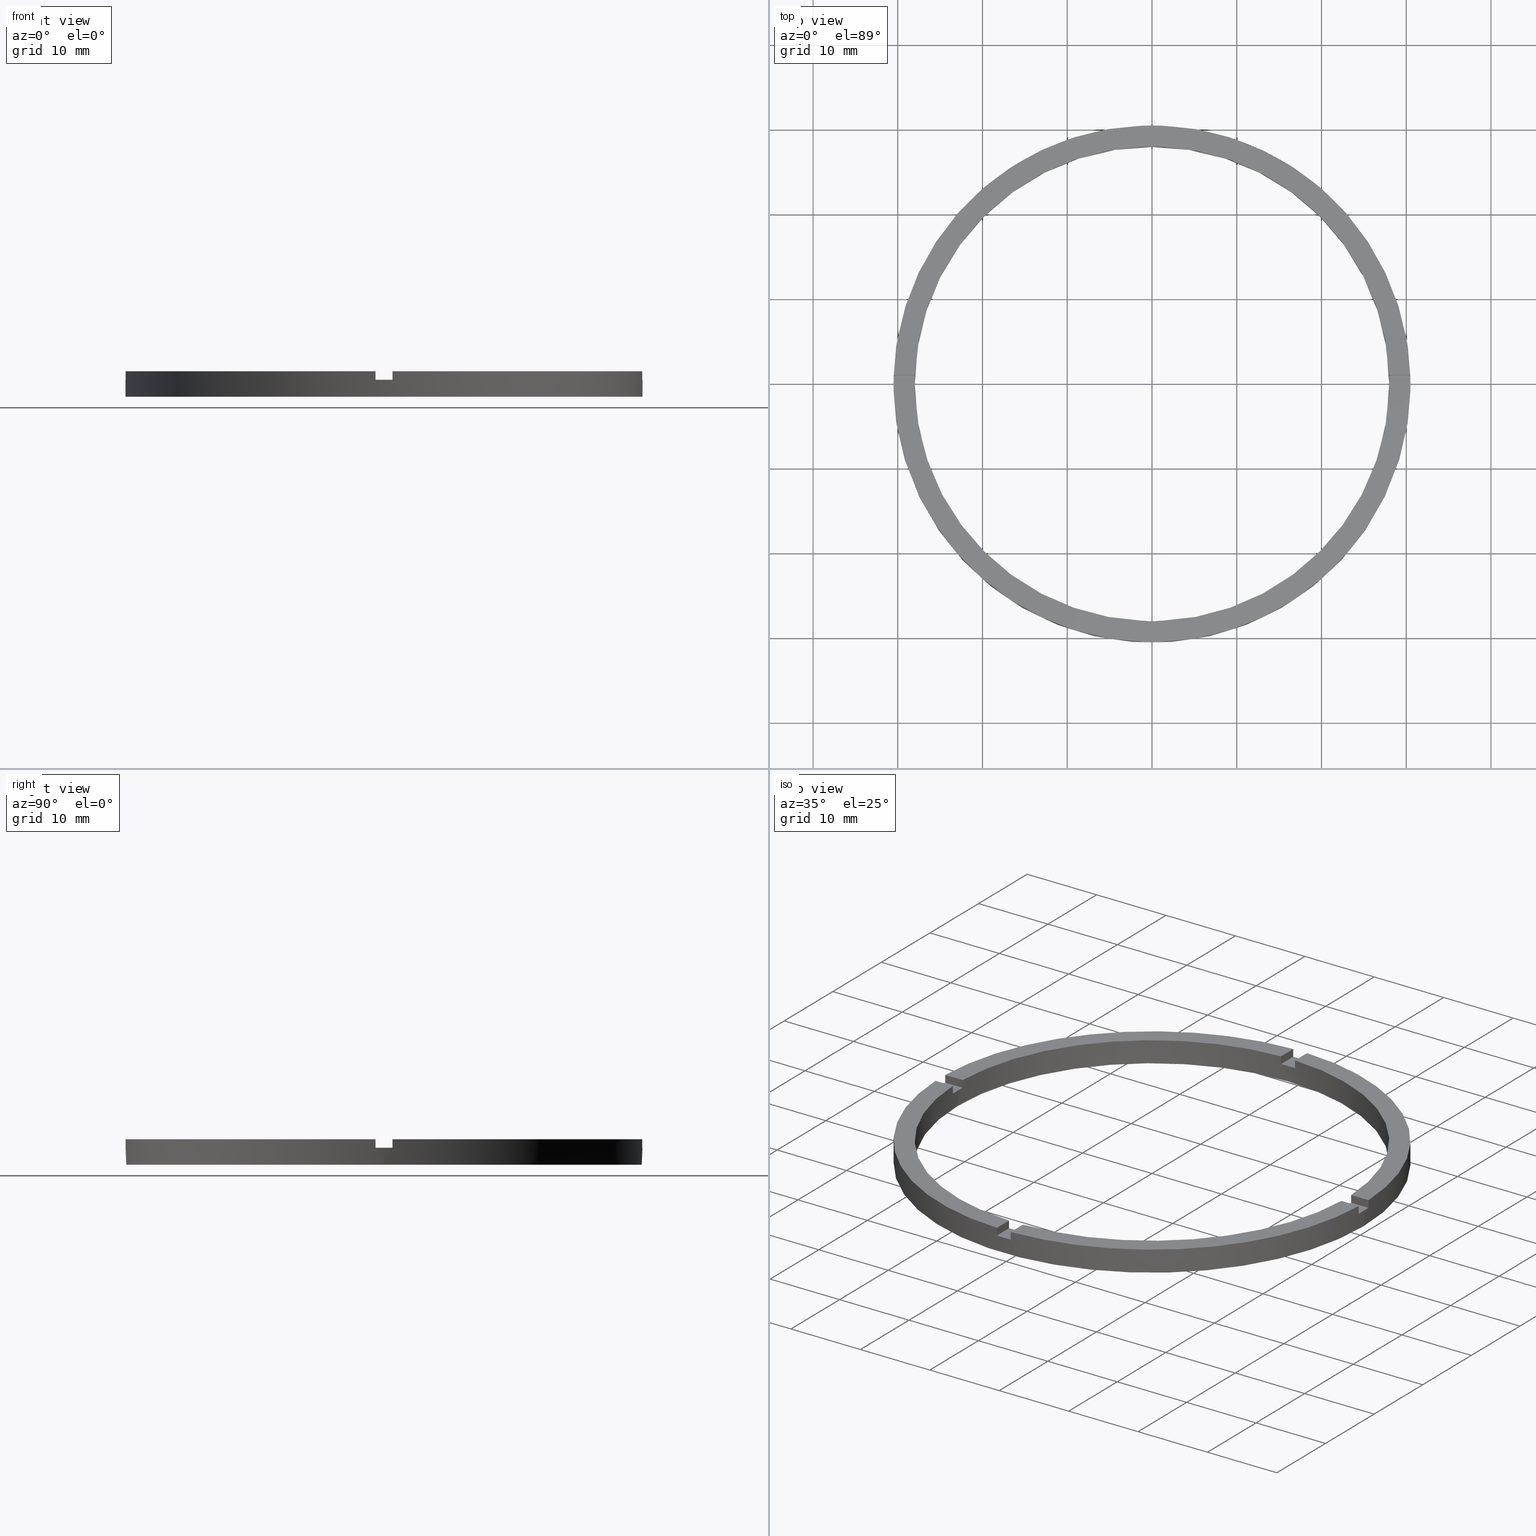
[diagram: canonical four-view strip — front | top / right | iso, engineering-drawing reading convention]
A machine part, canonical four-view strip (front | top / right | iso — engineering-drawing reading convention). The complete STEP part file that produces these views, byte-faithful:
ISO-10303-21;
HEADER;
FILE_DESCRIPTION (( 'STEP AP203' ),
    '1' );
FILE_NAME ('514126.step',
    '2024-12-26T02:39:59',
    ( 'MSI' ),
    ( '' ),
    'SwSTEP 2.0',
    'SolidWorks 2020',
    '' );
FILE_SCHEMA (( 'CONFIG_CONTROL_DESIGN' ));
ENDSEC;

DATA;
#1 = ORIENTED_EDGE ( 'NONE', *, *, #668, .T. ) ;
#2 = LOCAL_TIME ( 10, 39, 59.00000000000000000, #549 ) ;
#3 = EDGE_LOOP ( 'NONE', ( #233, #44, #696, #174 ) ) ;
#4 = COORDINATED_UNIVERSAL_TIME_OFFSET ( 8, 0, .AHEAD. ) ;
#5 = ORIENTED_EDGE ( 'NONE', *, *, #224, .F. ) ;
#6 = LOCAL_TIME ( 10, 39, 59.00000000000000000, #4 ) ;
#7 = ORIENTED_EDGE ( 'NONE', *, *, #504, .F. ) ;
#8 = DIRECTION ( 'NONE',  ( -0.000000000000000000, -0.000000000000000000, -1.000000000000000000 ) ) ;
#9 = PERSON_AND_ORGANIZATION_ROLE ( 'creator' ) ;
#10 = EDGE_CURVE ( 'NONE', #510, #271, #688, .T. ) ;
#11 = CARTESIAN_POINT ( 'NONE',  ( 30.48360214935235390, -1.000000000000158762, 2.000000000000000000 ) ) ;
#12 = LOCAL_TIME ( 10, 39, 59.00000000000000000, #31 ) ;
#13 = CARTESIAN_POINT ( 'NONE',  ( -27.98213715926644696, 0.9999999999999751310, 3.000000000000000000 ) ) ;
#14 = EDGE_CURVE ( 'NONE', #195, #271, #207, .T. ) ;
#15 = APPROVAL ( #777, 'δָ��' ) ;
#16 = AXIS2_PLACEMENT_3D ( 'NONE', #725, #392, #673 ) ;
#17 = DATE_AND_TIME ( #307, #2 ) ;
#18 = DIRECTION ( 'NONE',  ( 1.000000000000000000, 0.000000000000000000, 0.000000000000000000 ) ) ;
#19 = AXIS2_PLACEMENT_3D ( 'NONE', #220, #26, #463 ) ;
#20 = EDGE_CURVE ( 'NONE', #568, #703, #691, .T. ) ;
#21 = APPROVAL_DATE_TIME ( #295, #136 ) ;
#22 = DIRECTION ( 'NONE',  ( 0.000000000000000000, 0.000000000000000000, 1.000000000000000000 ) ) ;
#23 = VERTEX_POINT ( 'NONE', #669 ) ;
#24 = AXIS2_PLACEMENT_3D ( 'NONE', #557, #674, #721 ) ;
#25 = CALENDAR_DATE ( 2024, 26, 12 ) ;
#26 = DIRECTION ( 'NONE',  ( 0.000000000000000000, 0.000000000000000000, 1.000000000000000000 ) ) ;
#27 = ORIENTED_EDGE ( 'NONE', *, *, #436, .F. ) ;
#28 = EDGE_LOOP ( 'NONE', ( #348, #143, #132, #455 ) ) ;
#29 = ORIENTED_EDGE ( 'NONE', *, *, #308, .F. ) ;
#30 = PLANE ( 'NONE',  #695 ) ;
#31 = COORDINATED_UNIVERSAL_TIME_OFFSET ( 8, 0, .AHEAD. ) ;
#32 = DIRECTION ( 'NONE',  ( 1.000000000000000000, 0.000000000000000000, 0.000000000000000000 ) ) ;
#33 = ORIENTED_EDGE ( 'NONE', *, *, #488, .F. ) ;
#34 = CARTESIAN_POINT ( 'NONE',  ( -1.000000000000024425, 20.49999999999999645, 3.000000000000000000 ) ) ;
#35 = ORIENTED_EDGE ( 'NONE', *, *, #680, .F. ) ;
#36 = DIRECTION ( 'NONE',  ( 0.000000000000000000, -0.000000000000000000, 1.000000000000000000 ) ) ;
#37 = FACE_OUTER_BOUND ( 'NONE', #646, .T. ) ;
#38 = FACE_OUTER_BOUND ( 'NONE', #735, .T. ) ;
#39 = ORIENTED_EDGE ( 'NONE', *, *, #374, .T. ) ;
#40 = FACE_OUTER_BOUND ( 'NONE', #62, .T. ) ;
#41 = CARTESIAN_POINT ( 'NONE',  ( 0.9999999999999754641, 20.49999999999999645, 2.000000000000000000 ) ) ;
#42 = VERTEX_POINT ( 'NONE', #11 ) ;
#43 = VECTOR ( 'NONE', #645, 1000.000000000000000 ) ;
#44 = ORIENTED_EDGE ( 'NONE', *, *, #10, .T. ) ;
#45 = DIRECTION ( 'NONE',  ( 1.000000000000000000, 0.000000000000000000, 0.000000000000000000 ) ) ;
#46 = LINE ( 'NONE', #585, #345 ) ;
#47 = DIRECTION ( 'NONE',  ( 0.000000000000000000, 0.000000000000000000, 1.000000000000000000 ) ) ;
#48 = ADVANCED_FACE ( 'NONE', ( #451, #470 ), #30, .F. ) ;
#49 = LINE ( 'NONE', #530, #357 ) ;
#50 = ORIENTED_EDGE ( 'NONE', *, *, #701, .T. ) ;
#51 = CIRCLE ( 'NONE', #726, 30.50000000000000000 ) ;
#52 = VECTOR ( 'NONE', #626, 1000.000000000000000 ) ;
#53 = PLANE ( 'NONE',  #167 ) ;
#54 = DIRECTION ( 'NONE',  ( 1.000000000000000000, 0.000000000000000000, 0.000000000000000000 ) ) ;
#55 = CYLINDRICAL_SURFACE ( 'NONE', #246, 28.00000000000000000 ) ;
#56 = ORIENTED_EDGE ( 'NONE', *, *, #140, .F. ) ;
#57 = CARTESIAN_POINT ( 'NONE',  ( 0.000000000000000000, 0.000000000000000000, 0.000000000000000000 ) ) ;
#58 = CYLINDRICAL_SURFACE ( 'NONE', #687, 30.50000000000000000 ) ;
#59 = ORIENTED_EDGE ( 'NONE', *, *, #478, .F. ) ;
#60 = VECTOR ( 'NONE', #299, 1000.000000000000000 ) ;
#61 = VECTOR ( 'NONE', #639, 1000.000000000000000 ) ;
#62 = EDGE_LOOP ( 'NONE', ( #249, #209, #35, #27, #258, #780, #574, #515, #440, #527, #262, #712 ) ) ;
#63 = VECTOR ( 'NONE', #66, 1000.000000000000000 ) ;
#64 = LINE ( 'NONE', #756, #678 ) ;
#65 = ORIENTED_EDGE ( 'NONE', *, *, #657, .T. ) ;
#66 = DIRECTION ( 'NONE',  ( -0.000000000000000000, -1.000000000000000000, -0.000000000000000000 ) ) ;
#67 = EDGE_CURVE ( 'NONE', #271, #670, #443, .T. ) ;
#68 = CIRCLE ( 'NONE', #534, 28.00000000000000000 ) ;
#69 = VECTOR ( 'NONE', #672, 1000.000000000000000 ) ;
#70 = EDGE_LOOP ( 'NONE', ( #5, #311, #309, #578 ) ) ;
#71 = CIRCLE ( 'NONE', #632, 30.50000000000000000 ) ;
#72 = ORIENTED_EDGE ( 'NONE', *, *, #514, .T. ) ;
#73 = VECTOR ( 'NONE', #430, 1000.000000000000000 ) ;
#74 = ORIENTED_EDGE ( 'NONE', *, *, #755, .T. ) ;
#75 = CARTESIAN_POINT ( 'NONE',  ( -28.00000000000000000, 0.000000000000000000, 3.000000000000000000 ) ) ;
#76 = CIRCLE ( 'NONE', #766, 30.50000000000000000 ) ;
#77 = ORIENTED_EDGE ( 'NONE', *, *, #238, .T. ) ;
#78 = CARTESIAN_POINT ( 'NONE',  ( 0.000000000000000000, 0.000000000000000000, 3.000000000000000000 ) ) ;
#79 = EDGE_CURVE ( 'NONE', #731, #734, #454, .T. ) ;
#80 = LINE ( 'NONE', #636, #63 ) ;
#81 = ORIENTED_EDGE ( 'NONE', *, *, #504, .T. ) ;
#82 = FACE_OUTER_BOUND ( 'NONE', #222, .T. ) ;
#83 = LINE ( 'NONE', #675, #310 ) ;
#84 = AXIS2_PLACEMENT_3D ( 'NONE', #41, #152, #288 ) ;
#85 = EDGE_CURVE ( 'NONE', #690, #670, #169, .T. ) ;
#86 = CIRCLE ( 'NONE', #331, 28.00000000000000000 ) ;
#87 = DIRECTION ( 'NONE',  ( 1.000000000000000000, 0.000000000000000000, 0.000000000000000000 ) ) ;
#88 = VECTOR ( 'NONE', #378, 1000.000000000000000 ) ;
#89 = PERSON_AND_ORGANIZATION_ROLE ( 'classification_officer' ) ;
#90 = EDGE_CURVE ( 'NONE', #764, #349, #477, .T. ) ;
#91 = CARTESIAN_POINT ( 'NONE',  ( 0.000000000000000000, 0.000000000000000000, 2.000000000000000000 ) ) ;
#92 = DIRECTION ( 'NONE',  ( 0.000000000000000000, 0.000000000000000000, 1.000000000000000000 ) ) ;
#93 = AXIS2_PLACEMENT_3D ( 'NONE', #754, #47, #633 ) ;
#94 = CARTESIAN_POINT ( 'NONE',  ( 27.98213715926643985, -1.000000000000158984, 3.000000000000000000 ) ) ;
#95 = CARTESIAN_POINT ( 'NONE',  ( -27.98213715926644340, -1.000000000000024869, 3.000000000000000000 ) ) ;
#96 = CARTESIAN_POINT ( 'NONE',  ( -1.000000000000161871, -27.98213715926643985, 3.000000000000000000 ) ) ;
#97 = CALENDAR_DATE ( 2024, 26, 12 ) ;
#98 = APPROVAL_ROLE ( '' ) ;
#99 = CARTESIAN_POINT ( 'NONE',  ( 30.48360214935235390, -1.000000000000158762, 3.000000000000000000 ) ) ;
#100 = DIRECTION ( 'NONE',  ( 0.000000000000000000, 0.000000000000000000, 1.000000000000000000 ) ) ;
#101 = DIRECTION ( 'NONE',  ( -1.000000000000000000, -1.951563910473907735E-16, 0.000000000000000000 ) ) ;
#102 = PRODUCT_DEFINITION_SHAPE ( 'NONE', 'NONE',  #380 ) ;
#103 = CC_DESIGN_PERSON_AND_ORGANIZATION_ASSIGNMENT ( #547, #134, ( #757 ) ) ;
#104 = CARTESIAN_POINT ( 'NONE',  ( 0.000000000000000000, 0.000000000000000000, 2.000000000000000000 ) ) ;
#105 = CARTESIAN_POINT ( 'NONE',  ( 27.98213715926643985, -1.000000000000158984, 3.000000000000000000 ) ) ;
#106 = CARTESIAN_POINT ( 'NONE',  ( 30.48360214935236456, 0.9999999999998412381, 3.000000000000000000 ) ) ;
#107 = DIRECTION ( 'NONE',  ( 1.000000000000000000, 1.951563910473907735E-16, -0.000000000000000000 ) ) ;
#108 = ADVANCED_FACE ( 'NONE', ( #685 ), #610, .F. ) ;
#109 = CARTESIAN_POINT ( 'NONE',  ( 0.000000000000000000, 0.000000000000000000, 2.000000000000000000 ) ) ;
#110 =( NAMED_UNIT ( * ) PLANE_ANGLE_UNIT ( ) SI_UNIT ( $, .RADIAN. ) );
#111 = CARTESIAN_POINT ( 'NONE',  ( -27.98213715926644696, 0.9999999999999751310, 2.000000000000000000 ) ) ;
#112 = CARTESIAN_POINT ( 'NONE',  ( 0.000000000000000000, 0.000000000000000000, 2.000000000000000000 ) ) ;
#113 = PLANE ( 'NONE',  #446 ) ;
#114 = CARTESIAN_POINT ( 'NONE',  ( 0.000000000000000000, 0.000000000000000000, 2.000000000000000000 ) ) ;
#115 = DIRECTION ( 'NONE',  ( -0.000000000000000000, -0.000000000000000000, -1.000000000000000000 ) ) ;
#116 = EDGE_CURVE ( 'NONE', #734, #192, #181, .T. ) ;
#117 = CARTESIAN_POINT ( 'NONE',  ( -1.000000000000161871, -27.98213715926643985, 2.000000000000000000 ) ) ;
#118 = CARTESIAN_POINT ( 'NONE',  ( 0.000000000000000000, 0.000000000000000000, 3.000000000000000000 ) ) ;
#119 = DIRECTION ( 'NONE',  ( -1.000000000000000000, 0.000000000000000000, 0.000000000000000000 ) ) ;
#120 = ADVANCED_FACE ( 'NONE', ( #170 ), #581, .T. ) ;
#121 = CARTESIAN_POINT ( 'NONE',  ( 0.000000000000000000, 0.000000000000000000, 3.000000000000000000 ) ) ;
#122 = CARTESIAN_POINT ( 'NONE',  ( -30.48360214935236101, 0.9999999999999746869, 2.000000000000000000 ) ) ;
#123 = EDGE_CURVE ( 'NONE', #219, #423, #710, .T. ) ;
#124 = VECTOR ( 'NONE', #404, 1000.000000000000000 ) ;
#125 = FACE_OUTER_BOUND ( 'NONE', #480, .T. ) ;
#126 = SECURITY_CLASSIFICATION ( '', '', #260 ) ;
#127 = AXIS2_PLACEMENT_3D ( 'NONE', #179, #661, #548 ) ;
#128 = AXIS2_PLACEMENT_3D ( 'NONE', #689, #372, #642 ) ;
#129 = VECTOR ( 'NONE', #594, 1000.000000000000000 ) ;
#130 = VERTEX_POINT ( 'NONE', #412 ) ;
#131 = DIRECTION ( 'NONE',  ( -1.000000000000000000, -1.951563910473907735E-16, 0.000000000000000000 ) ) ;
#132 = ORIENTED_EDGE ( 'NONE', *, *, #20, .F. ) ;
#133 = DIRECTION ( 'NONE',  ( 1.000000000000000000, 0.000000000000000000, 0.000000000000000000 ) ) ;
#134 = PERSON_AND_ORGANIZATION_ROLE ( 'design_supplier' ) ;
#135 = VERTEX_POINT ( 'NONE', #461 ) ;
#136 = APPROVAL ( #506, 'δָ��' ) ;
#137 =( GEOMETRIC_REPRESENTATION_CONTEXT ( 3 ) GLOBAL_UNCERTAINTY_ASSIGNED_CONTEXT ( ( #650 ) ) GLOBAL_UNIT_ASSIGNED_CONTEXT ( ( #367, #110, #154 ) ) REPRESENTATION_CONTEXT ( 'NONE', 'WORKASPACE' ) );
#138 = ORIENTED_EDGE ( 'NONE', *, *, #308, .T. ) ;
#139 = CARTESIAN_POINT ( 'NONE',  ( 0.000000000000000000, 0.000000000000000000, 2.000000000000000000 ) ) ;
#140 = EDGE_CURVE ( 'NONE', #275, #711, #456, .T. ) ;
#141 = CARTESIAN_POINT ( 'NONE',  ( -20.50000000000018119, 0.9999999999999765743, 2.000000000000000000 ) ) ;
#142 = VERTEX_POINT ( 'NONE', #151 ) ;
#143 = ORIENTED_EDGE ( 'NONE', *, *, #159, .F. ) ;
#144 = DIRECTION ( 'NONE',  ( 6.505213034913025371E-17, -1.000000000000000000, 0.000000000000000000 ) ) ;
#145 = DIRECTION ( 'NONE',  ( 1.000000000000000000, 0.000000000000000000, 0.000000000000000000 ) ) ;
#146 = DIRECTION ( 'NONE',  ( -1.000000000000000000, -6.505213034913025371E-17, -0.000000000000000000 ) ) ;
#147 = EDGE_LOOP ( 'NONE', ( #593, #234 ) ) ;
#148 = DIRECTION ( 'NONE',  ( 0.000000000000000000, 0.000000000000000000, 1.000000000000000000 ) ) ;
#149 = ORIENTED_EDGE ( 'NONE', *, *, #623, .T. ) ;
#150 = CARTESIAN_POINT ( 'NONE',  ( 0.9999999999998382405, -27.98213715926645051, 2.000000000000000000 ) ) ;
#151 = CARTESIAN_POINT ( 'NONE',  ( 0.9999999999999754641, 30.48360214935236101, 3.000000000000000000 ) ) ;
#152 = DIRECTION ( 'NONE',  ( 1.000000000000000000, -0.000000000000000000, 0.000000000000000000 ) ) ;
#153 = EDGE_CURVE ( 'NONE', #130, #773, #702, .T. ) ;
#154 =( NAMED_UNIT ( * ) SI_UNIT ( $, .STERADIAN. ) SOLID_ANGLE_UNIT ( ) );
#155 = CARTESIAN_POINT ( 'NONE',  ( 0.000000000000000000, 0.000000000000000000, 2.000000000000000000 ) ) ;
#156 = CC_DESIGN_PERSON_AND_ORGANIZATION_ASSIGNMENT ( #292, #190, ( #757 ) ) ;
#157 = DIRECTION ( 'NONE',  ( 0.000000000000000000, -0.000000000000000000, 1.000000000000000000 ) ) ;
#158 = AXIS2_PLACEMENT_3D ( 'NONE', #141, #505, #101 ) ;
#159 = EDGE_CURVE ( 'NONE', #703, #349, #186, .T. ) ;
#160 = PLANE ( 'NONE',  #84 ) ;
#161 = DIRECTION ( 'NONE',  ( 1.301042606982605074E-16, -1.000000000000000000, 0.000000000000000000 ) ) ;
#162 = DIRECTION ( 'NONE',  ( 1.000000000000000000, 0.000000000000000000, -0.000000000000000000 ) ) ;
#163 = ADVANCED_FACE ( 'NONE', ( #473 ), #168, .T. ) ;
#164 = AXIS2_PLACEMENT_3D ( 'NONE', #121, #438, #713 ) ;
#165 = CARTESIAN_POINT ( 'NONE',  ( 0.000000000000000000, 0.000000000000000000, 3.000000000000000000 ) ) ;
#166 = CC_DESIGN_DATE_AND_TIME_ASSIGNMENT ( #551, #439, ( #126 ) ) ;
#167 = AXIS2_PLACEMENT_3D ( 'NONE', #114, #36, #289 ) ;
#168 = PLANE ( 'NONE',  #322 ) ;
#169 = CIRCLE ( 'NONE', #250, 30.50000000000000000 ) ;
#170 = FACE_OUTER_BOUND ( 'NONE', #201, .T. ) ;
#171 = CARTESIAN_POINT ( 'NONE',  ( -1.000000000000161648, -30.48360214935235390, 3.000000000000000000 ) ) ;
#172 = DIRECTION ( 'NONE',  ( 0.000000000000000000, 0.000000000000000000, 1.000000000000000000 ) ) ;
#173 = ORIENTED_EDGE ( 'NONE', *, *, #606, .T. ) ;
#174 = ORIENTED_EDGE ( 'NONE', *, *, #755, .F. ) ;
#175 = ORIENTED_EDGE ( 'NONE', *, *, #523, .T. ) ;
#176 = ORIENTED_EDGE ( 'NONE', *, *, #657, .F. ) ;
#177 = ORIENTED_EDGE ( 'NONE', *, *, #347, .T. ) ;
#178 = ORIENTED_EDGE ( 'NONE', *, *, #686, .F. ) ;
#179 = CARTESIAN_POINT ( 'NONE',  ( 0.000000000000000000, 0.000000000000000000, 0.000000000000000000 ) ) ;
#180 = CARTESIAN_POINT ( 'NONE',  ( 0.000000000000000000, 0.000000000000000000, 2.000000000000000000 ) ) ;
#181 = CIRCLE ( 'NONE', #666, 30.50000000000000000 ) ;
#182 = ORIENTED_EDGE ( 'NONE', *, *, #354, .F. ) ;
#183 = ORIENTED_EDGE ( 'NONE', *, *, #448, .T. ) ;
#184 = VECTOR ( 'NONE', #684, 1000.000000000000000 ) ;
#185 = ORIENTED_EDGE ( 'NONE', *, *, #490, .T. ) ;
#186 = CIRCLE ( 'NONE', #538, 28.00000000000000000 ) ;
#187 = EDGE_LOOP ( 'NONE', ( #185, #771, #584, #182, #188, #692 ) ) ;
#188 = ORIENTED_EDGE ( 'NONE', *, *, #606, .F. ) ;
#189 = CARTESIAN_POINT ( 'NONE',  ( 0.000000000000000000, 0.000000000000000000, 2.000000000000000000 ) ) ;
#190 = PERSON_AND_ORGANIZATION_ROLE ( 'creator' ) ;
#191 = ORIENTED_EDGE ( 'NONE', *, *, #123, .F. ) ;
#192 = VERTEX_POINT ( 'NONE', #550 ) ;
#193 = VERTEX_POINT ( 'NONE', #122 ) ;
#194 = ORIENTED_EDGE ( 'NONE', *, *, #629, .F. ) ;
#195 = VERTEX_POINT ( 'NONE', #699 ) ;
#196 = DIRECTION ( 'NONE',  ( 1.000000000000000000, 0.000000000000000000, 0.000000000000000000 ) ) ;
#197 = VECTOR ( 'NONE', #107, 1000.000000000000000 ) ;
#198 = EDGE_CURVE ( 'NONE', #568, #408, #210, .T. ) ;
#199 = VERTEX_POINT ( 'NONE', #388 ) ;
#200 = DIRECTION ( 'NONE',  ( 0.000000000000000000, 1.000000000000000000, 0.000000000000000000 ) ) ;
#201 = EDGE_LOOP ( 'NONE', ( #445, #39, #339, #595, #255, #149 ) ) ;
#202 = AXIS2_PLACEMENT_3D ( 'NONE', #622, #92, #263 ) ;
#203 = VERTEX_POINT ( 'NONE', #435 ) ;
#204 = AXIS2_PLACEMENT_3D ( 'NONE', #91, #389, #328 ) ;
#205 = EDGE_CURVE ( 'NONE', #130, #142, #717, .T. ) ;
#206 = FACE_OUTER_BOUND ( 'NONE', #532, .T. ) ;
#207 = CIRCLE ( 'NONE', #577, 28.00000000000000000 ) ;
#208 = DIRECTION ( 'NONE',  ( 1.000000000000000000, 1.951563910473907735E-16, -0.000000000000000000 ) ) ;
#209 = ORIENTED_EDGE ( 'NONE', *, *, #396, .T. ) ;
#210 = CIRCLE ( 'NONE', #373, 30.50000000000000000 ) ;
#211 = EDGE_LOOP ( 'NONE', ( #77, #540, #191, #273 ) ) ;
#212 = LINE ( 'NONE', #370, #481 ) ;
#213 = VECTOR ( 'NONE', #257, 1000.000000000000000 ) ;
#214 = AXIS2_PLACEMENT_3D ( 'NONE', #634, #148, #32 ) ;
#215 = ORIENTED_EDGE ( 'NONE', *, *, #85, .T. ) ;
#216 = ORIENTED_EDGE ( 'NONE', *, *, #779, .T. ) ;
#217 = DIRECTION ( 'NONE',  ( -1.301042606982605074E-16, 1.000000000000000000, -0.000000000000000000 ) ) ;
#218 = LINE ( 'NONE', #245, #765 ) ;
#219 = VERTEX_POINT ( 'NONE', #566 ) ;
#220 = CARTESIAN_POINT ( 'NONE',  ( 0.000000000000000000, 0.000000000000000000, 3.000000000000000000 ) ) ;
#221 = AXIS2_PLACEMENT_3D ( 'NONE', #112, #157, #232 ) ;
#222 = EDGE_LOOP ( 'NONE', ( #326, #458, #56, #29 ) ) ;
#223 = CARTESIAN_POINT ( 'NONE',  ( 0.9999999999999754641, 27.98213715926644696, 3.000000000000000000 ) ) ;
#224 = EDGE_CURVE ( 'NONE', #764, #466, #486, .T. ) ;
#225 = CARTESIAN_POINT ( 'NONE',  ( 20.49999999999999289, 0.9999999999998406830, 3.000000000000000000 ) ) ;
#226 = CARTESIAN_POINT ( 'NONE',  ( -1.000000000000161648, -30.48360214935235390, 3.000000000000000000 ) ) ;
#227 = CARTESIAN_POINT ( 'NONE',  ( 0.000000000000000000, 0.000000000000000000, 3.000000000000000000 ) ) ;
#228 = ORIENTED_EDGE ( 'NONE', *, *, #85, .F. ) ;
#229 = CARTESIAN_POINT ( 'NONE',  ( -1.000000000000162759, -20.50000000000017764, 3.000000000000000000 ) ) ;
#230 = CARTESIAN_POINT ( 'NONE',  ( 0.9999999999998371303, -20.50000000000017764, 2.000000000000000000 ) ) ;
#231 = ORIENTED_EDGE ( 'NONE', *, *, #14, .F. ) ;
#232 = DIRECTION ( 'NONE',  ( 1.000000000000000000, 0.000000000000000000, 0.000000000000000000 ) ) ;
#233 = ORIENTED_EDGE ( 'NONE', *, *, #623, .F. ) ;
#234 = ORIENTED_EDGE ( 'NONE', *, *, #400, .F. ) ;
#235 = CARTESIAN_POINT ( 'NONE',  ( -1.000000000000024425, 20.49999999999999645, 2.000000000000000000 ) ) ;
#236 = PLANE ( 'NONE',  #462 ) ;
#237 = PLANE ( 'NONE',  #612 ) ;
#238 = EDGE_CURVE ( 'NONE', #321, #654, #403, .T. ) ;
#239 = DIRECTION ( 'NONE',  ( -0.000000000000000000, -0.000000000000000000, -1.000000000000000000 ) ) ;
#240 = VECTOR ( 'NONE', #8, 1000.000000000000000 ) ;
#241 = VECTOR ( 'NONE', #356, 1000.000000000000000 ) ;
#242 = EDGE_CURVE ( 'NONE', #135, #130, #405, .T. ) ;
#243 = CARTESIAN_POINT ( 'NONE',  ( 27.98213715926645051, 0.9999999999998411271, 2.000000000000000000 ) ) ;
#244 = PRODUCT_RELATED_PRODUCT_CATEGORY ( 'detail', '', ( #341 ) ) ;
#245 = CARTESIAN_POINT ( 'NONE',  ( 28.00000000000000000, 3.429011037612589276E-15, 3.000000000000000000 ) ) ;
#246 = AXIS2_PLACEMENT_3D ( 'NONE', #118, #239, #698 ) ;
#247 = ORIENTED_EDGE ( 'NONE', *, *, #514, .F. ) ;
#248 = ORIENTED_EDGE ( 'NONE', *, *, #469, .T. ) ;
#249 = ORIENTED_EDGE ( 'NONE', *, *, #653, .T. ) ;
#250 = AXIS2_PLACEMENT_3D ( 'NONE', #599, #406, #379 ) ;
#251 = ADVANCED_BREP_SHAPE_REPRESENTATION ( '514126', ( #750, #16 ), #137 ) ;
#252 = CIRCLE ( 'NONE', #204, 28.00000000000000000 ) ;
#253 = ORIENTED_EDGE ( 'NONE', *, *, #242, .F. ) ;
#254 = CIRCLE ( 'NONE', #127, 30.50000000000000000 ) ;
#255 = ORIENTED_EDGE ( 'NONE', *, *, #653, .F. ) ;
#256 = EDGE_CURVE ( 'NONE', #416, #553, #409, .T. ) ;
#257 = DIRECTION ( 'NONE',  ( 0.000000000000000000, 0.000000000000000000, 1.000000000000000000 ) ) ;
#258 = ORIENTED_EDGE ( 'NONE', *, *, #354, .T. ) ;
#259 = CARTESIAN_POINT ( 'NONE',  ( 0.9999999999999754641, 20.49999999999999645, 2.000000000000000000 ) ) ;
#260 = SECURITY_CLASSIFICATION_LEVEL ( 'unclassified' ) ;
#261 = ORIENTED_EDGE ( 'NONE', *, *, #627, .F. ) ;
#262 = ORIENTED_EDGE ( 'NONE', *, *, #14, .T. ) ;
#263 = DIRECTION ( 'NONE',  ( 1.000000000000000000, 0.000000000000000000, 0.000000000000000000 ) ) ;
#264 = CARTESIAN_POINT ( 'NONE',  ( -30.48360214935236101, -1.000000000000025313, 3.000000000000000000 ) ) ;
#265 = EDGE_LOOP ( 'NONE', ( #343, #81 ) ) ;
#266 = ORIENTED_EDGE ( 'NONE', *, *, #779, .F. ) ;
#267 = CARTESIAN_POINT ( 'NONE',  ( 0.9999999999999754641, 30.48360214935236101, 3.000000000000000000 ) ) ;
#268 = AXIS2_PLACEMENT_3D ( 'NONE', #554, #371, #607 ) ;
#269 = ORIENTED_EDGE ( 'NONE', *, *, #369, .F. ) ;
#270 = AXIS2_PLACEMENT_3D ( 'NONE', #575, #366, #133 ) ;
#271 = VERTEX_POINT ( 'NONE', #105 ) ;
#272 = DIRECTION ( 'NONE',  ( 0.000000000000000000, 0.000000000000000000, 1.000000000000000000 ) ) ;
#273 = ORIENTED_EDGE ( 'NONE', *, *, #740, .F. ) ;
#274 = CARTESIAN_POINT ( 'NONE',  ( 0.9999999999998384625, -30.48360214935236456, 2.000000000000000000 ) ) ;
#275 = VERTEX_POINT ( 'NONE', #342 ) ;
#276 = CARTESIAN_POINT ( 'NONE',  ( 20.49999999999999289, 0.9999999999998406830, 2.000000000000000000 ) ) ;
#277 = APPROVAL_PERSON_ORGANIZATION ( #282, #15, #98 ) ;
#278 = CARTESIAN_POINT ( 'NONE',  ( 0.000000000000000000, 0.000000000000000000, 2.000000000000000000 ) ) ;
#279 = CALENDAR_DATE ( 2024, 26, 12 ) ;
#280 = CARTESIAN_POINT ( 'NONE',  ( 30.48360214935236456, 0.9999999999998412381, 3.000000000000000000 ) ) ;
#281 = CC_DESIGN_SECURITY_CLASSIFICATION ( #126, ( #757 ) ) ;
#282 = PERSON_AND_ORGANIZATION ( #391, #362 ) ;
#283 = CARTESIAN_POINT ( 'NONE',  ( 28.00000000000000000, 3.429011037612589276E-15, 0.000000000000000000 ) ) ;
#284 = CARTESIAN_POINT ( 'NONE',  ( 30.50000000000000000, 3.735172737399427541E-15, 3.000000000000000000 ) ) ;
#285 = CARTESIAN_POINT ( 'NONE',  ( 20.49999999999999289, -1.000000000000159428, 3.000000000000000000 ) ) ;
#286 = APPROVAL_PERSON_ORGANIZATION ( #290, #136, #546 ) ;
#287 = CALENDAR_DATE ( 2024, 26, 12 ) ;
#288 = DIRECTION ( 'NONE',  ( 0.000000000000000000, 0.000000000000000000, -1.000000000000000000 ) ) ;
#289 = DIRECTION ( 'NONE',  ( 1.000000000000000000, 0.000000000000000000, -0.000000000000000000 ) ) ;
#290 = PERSON_AND_ORGANIZATION ( #391, #362 ) ;
#291 = APPROVAL_DATE_TIME ( #558, #15 ) ;
#292 = PERSON_AND_ORGANIZATION ( #391, #362 ) ;
#293 = DIRECTION ( 'NONE',  ( 0.000000000000000000, 1.000000000000000000, 0.000000000000000000 ) ) ;
#294 = EDGE_CURVE ( 'NONE', #764, #427, #640, .T. ) ;
#295 = DATE_AND_TIME ( #25, #6 ) ;
#296 = VERTEX_POINT ( 'NONE', #509 ) ;
#297 = CARTESIAN_POINT ( 'NONE',  ( -30.50000000000000000, 0.000000000000000000, 0.000000000000000000 ) ) ;
#298 = COORDINATED_UNIVERSAL_TIME_OFFSET ( 8, 0, .AHEAD. ) ;
#299 = DIRECTION ( 'NONE',  ( -0.000000000000000000, -0.000000000000000000, -1.000000000000000000 ) ) ;
#300 = ADVANCED_FACE ( 'NONE', ( #125 ), #732, .T. ) ;
#301 = ORIENTED_EDGE ( 'NONE', *, *, #396, .F. ) ;
#302 = LOCAL_TIME ( 10, 39, 59.00000000000000000, #298 ) ;
#303 = SHAPE_DEFINITION_REPRESENTATION ( #102, #251 ) ;
#304 = PLANE ( 'NONE',  #499 ) ;
#305 = ORIENTED_EDGE ( 'NONE', *, *, #613, .T. ) ;
#306 = VERTEX_POINT ( 'NONE', #274 ) ;
#307 = CALENDAR_DATE ( 2024, 26, 12 ) ;
#308 = EDGE_CURVE ( 'NONE', #568, #275, #502, .T. ) ;
#309 = ORIENTED_EDGE ( 'NONE', *, *, #376, .T. ) ;
#310 = VECTOR ( 'NONE', #217, 1000.000000000000000 ) ;
#311 = ORIENTED_EDGE ( 'NONE', *, *, #90, .T. ) ;
#312 = DIRECTION ( 'NONE',  ( 1.000000000000000000, 0.000000000000000000, 0.000000000000000000 ) ) ;
#313 = CYLINDRICAL_SURFACE ( 'NONE', #164, 28.00000000000000000 ) ;
#314 = ORIENTED_EDGE ( 'NONE', *, *, #347, .F. ) ;
#315 = VECTOR ( 'NONE', #22, 1000.000000000000000 ) ;
#316 = EDGE_CURVE ( 'NONE', #690, #306, #745, .T. ) ;
#317 = VECTOR ( 'NONE', #414, 1000.000000000000000 ) ;
#318 = CARTESIAN_POINT ( 'NONE',  ( -1.000000000000024425, 30.48360214935236101, 3.000000000000000000 ) ) ;
#319 = CC_DESIGN_DATE_AND_TIME_ASSIGNMENT ( #17, #555, ( #380 ) ) ;
#320 = LINE ( 'NONE', #683, #60 ) ;
#321 = VERTEX_POINT ( 'NONE', #280 ) ;
#322 = AXIS2_PLACEMENT_3D ( 'NONE', #624, #385, #723 ) ;
#323 = LINE ( 'NONE', #106, #88 ) ;
#324 = ORIENTED_EDGE ( 'NONE', *, *, #393, .F. ) ;
#325 = LINE ( 'NONE', #476, #573 ) ;
#326 = ORIENTED_EDGE ( 'NONE', *, *, #20, .T. ) ;
#327 = CIRCLE ( 'NONE', #128, 28.00000000000000000 ) ;
#328 = DIRECTION ( 'NONE',  ( 1.000000000000000000, 0.000000000000000000, 0.000000000000000000 ) ) ;
#329 = DIRECTION ( 'NONE',  ( 0.000000000000000000, 0.000000000000000000, 1.000000000000000000 ) ) ;
#330 = ORIENTED_EDGE ( 'NONE', *, *, #400, .T. ) ;
#331 = AXIS2_PLACEMENT_3D ( 'NONE', #572, #172, #387 ) ;
#332 = FACE_OUTER_BOUND ( 'NONE', #484, .T. ) ;
#333 = VECTOR ( 'NONE', #655, 1000.000000000000000 ) ;
#334 = LINE ( 'NONE', #351, #69 ) ;
#335 = CIRCLE ( 'NONE', #453, 28.00000000000000000 ) ;
#336 = ORIENTED_EDGE ( 'NONE', *, *, #490, .F. ) ;
#337 = VECTOR ( 'NONE', #131, 1000.000000000000000 ) ;
#338 = DIRECTION ( 'NONE',  ( 1.000000000000000000, 0.000000000000000000, 0.000000000000000000 ) ) ;
#339 = ORIENTED_EDGE ( 'NONE', *, *, #123, .T. ) ;
#340 = CIRCLE ( 'NONE', #214, 30.50000000000000000 ) ;
#341 = PRODUCT ( '514126', '514126', '', ( #667 ) ) ;
#342 = CARTESIAN_POINT ( 'NONE',  ( -30.48360214935236101, -1.000000000000025313, 2.000000000000000000 ) ) ;
#343 = ORIENTED_EDGE ( 'NONE', *, *, #680, .T. ) ;
#344 = APPROVAL_ROLE ( '' ) ;
#345 = VECTOR ( 'NONE', #677, 1000.000000000000000 ) ;
#346 = ORIENTED_EDGE ( 'NONE', *, *, #648, .F. ) ;
#347 = EDGE_CURVE ( 'NONE', #472, #457, #747, .T. ) ;
#348 = ORIENTED_EDGE ( 'NONE', *, *, #376, .F. ) ;
#349 = VERTEX_POINT ( 'NONE', #96 ) ;
#350 = FACE_OUTER_BOUND ( 'NONE', #533, .T. ) ;
#351 = CARTESIAN_POINT ( 'NONE',  ( -20.50000000000018119, 0.9999999999999765743, 2.000000000000000000 ) ) ;
#352 = FACE_OUTER_BOUND ( 'NONE', #70, .T. ) ;
#353 = CIRCLE ( 'NONE', #268, 28.00000000000000000 ) ;
#354 = EDGE_CURVE ( 'NONE', #767, #711, #503, .T. ) ;
#355 = PERSON_AND_ORGANIZATION ( #391, #362 ) ;
#356 = DIRECTION ( 'NONE',  ( 0.000000000000000000, 0.000000000000000000, 1.000000000000000000 ) ) ;
#357 = VECTOR ( 'NONE', #768, 1000.000000000000000 ) ;
#358 = DIRECTION ( 'NONE',  ( 1.000000000000000000, 0.000000000000000000, 0.000000000000000000 ) ) ;
#359 = DIRECTION ( 'NONE',  ( 1.951563910473907735E-16, -1.000000000000000000, 0.000000000000000000 ) ) ;
#360 = DIRECTION ( 'NONE',  ( -0.000000000000000000, -0.000000000000000000, -1.000000000000000000 ) ) ;
#361 = APPROVAL_PERSON_ORGANIZATION ( #615, #422, #344 ) ;
#362 = ORGANIZATION ( 'δָ��', 'δָ��', '' ) ;
#363 = DIRECTION ( 'NONE',  ( 0.000000000000000000, 0.000000000000000000, 1.000000000000000000 ) ) ;
#364 = DATE_AND_TIME ( #97, #611 ) ;
#365 = APPROVAL_DATE_TIME ( #364, #422 ) ;
#366 = DIRECTION ( 'NONE',  ( 0.000000000000000000, 0.000000000000000000, 1.000000000000000000 ) ) ;
#367 =( LENGTH_UNIT ( ) NAMED_UNIT ( * ) SI_UNIT ( .MILLI., .METRE. ) );
#368 = ADVANCED_FACE ( 'NONE', ( #748 ), #628, .F. ) ;
#369 = EDGE_CURVE ( 'NONE', #472, #193, #334, .T. ) ;
#370 = CARTESIAN_POINT ( 'NONE',  ( 27.98213715926645051, 0.9999999999998411271, 3.000000000000000000 ) ) ;
#371 = DIRECTION ( 'NONE',  ( 0.000000000000000000, 0.000000000000000000, 1.000000000000000000 ) ) ;
#372 = DIRECTION ( 'NONE',  ( 0.000000000000000000, 0.000000000000000000, 1.000000000000000000 ) ) ;
#373 = AXIS2_PLACEMENT_3D ( 'NONE', #431, #714, #87 ) ;
#374 = EDGE_CURVE ( 'NONE', #694, #219, #580, .T. ) ;
#375 = ADVANCED_FACE ( 'NONE', ( #332 ), #737, .F. ) ;
#376 = EDGE_CURVE ( 'NONE', #349, #408, #583, .T. ) ;
#377 = AXIS2_PLACEMENT_3D ( 'NONE', #512, #359, #741 ) ;
#378 = DIRECTION ( 'NONE',  ( -0.000000000000000000, -0.000000000000000000, -1.000000000000000000 ) ) ;
#379 = DIRECTION ( 'NONE',  ( 1.000000000000000000, 0.000000000000000000, 0.000000000000000000 ) ) ;
#380 = PRODUCT_DEFINITION ( 'δ֪', '', #757, #601 ) ;
#381 = DIRECTION ( 'NONE',  ( 0.000000000000000000, 0.000000000000000000, 1.000000000000000000 ) ) ;
#382 = EDGE_CURVE ( 'NONE', #199, #142, #64, .T. ) ;
#383 = ADVANCED_FACE ( 'NONE', ( #206 ), #113, .T. ) ;
#384 = CARTESIAN_POINT ( 'NONE',  ( 0.9999999999998371303, -20.50000000000017764, 2.000000000000000000 ) ) ;
#385 = DIRECTION ( 'NONE',  ( 0.000000000000000000, 0.000000000000000000, 1.000000000000000000 ) ) ;
#386 = ADVANCED_FACE ( 'NONE', ( #693 ), #160, .F. ) ;
#387 = DIRECTION ( 'NONE',  ( 1.000000000000000000, 0.000000000000000000, 0.000000000000000000 ) ) ;
#388 = CARTESIAN_POINT ( 'NONE',  ( 0.9999999999999754641, 27.98213715926644696, 3.000000000000000000 ) ) ;
#389 = DIRECTION ( 'NONE',  ( 0.000000000000000000, -0.000000000000000000, 1.000000000000000000 ) ) ;
#390 = DIRECTION ( 'NONE',  ( -1.000000000000000000, 0.000000000000000000, 0.000000000000000000 ) ) ;
#391 = PERSON ( 'δָ��', 'δָ��', 'δָ��', ('δָ��'), ('δָ��'), ('δָ��') ) ;
#392 = DIRECTION ( 'NONE',  ( 0.000000000000000000, 0.000000000000000000, 1.000000000000000000 ) ) ;
#393 = EDGE_CURVE ( 'NONE', #654, #423, #212, .T. ) ;
#394 = CARTESIAN_POINT ( 'NONE',  ( -20.50000000000018119, 0.9999999999999765743, 3.000000000000000000 ) ) ;
#395 = APPLICATION_CONTEXT ( 'configuration controlled 3d designs of mechanical parts and assemblies' ) ;
#396 = EDGE_CURVE ( 'NONE', #518, #763, #218, .T. ) ;
#397 = DIRECTION ( 'NONE',  ( 0.000000000000000000, 0.000000000000000000, 1.000000000000000000 ) ) ;
#398 = DIRECTION ( 'NONE',  ( 1.000000000000000000, 0.000000000000000000, 0.000000000000000000 ) ) ;
#399 = EDGE_CURVE ( 'NONE', #135, #296, #252, .T. ) ;
#400 = EDGE_CURVE ( 'NONE', #192, #734, #254, .T. ) ;
#401 = DIRECTION ( 'NONE',  ( 0.000000000000000000, 0.000000000000000000, 1.000000000000000000 ) ) ;
#402 = AXIS2_PLACEMENT_3D ( 'NONE', #227, #487, #468 ) ;
#403 = LINE ( 'NONE', #225, #643 ) ;
#404 = DIRECTION ( 'NONE',  ( -0.000000000000000000, -1.000000000000000000, -0.000000000000000000 ) ) ;
#405 = LINE ( 'NONE', #259, #644 ) ;
#406 = DIRECTION ( 'NONE',  ( 0.000000000000000000, 0.000000000000000000, 1.000000000000000000 ) ) ;
#407 = AXIS2_PLACEMENT_3D ( 'NONE', #525, #144, #485 ) ;
#408 = VERTEX_POINT ( 'NONE', #171 ) ;
#409 = LINE ( 'NONE', #34, #124 ) ;
#410 = ORIENTED_EDGE ( 'NONE', *, *, #469, .F. ) ;
#411 = DIRECTION ( 'NONE',  ( -0.000000000000000000, 0.000000000000000000, 1.000000000000000000 ) ) ;
#412 = CARTESIAN_POINT ( 'NONE',  ( 0.9999999999999754641, 30.48360214935236101, 2.000000000000000000 ) ) ;
#413 = ORIENTED_EDGE ( 'NONE', *, *, #523, .F. ) ;
#414 = DIRECTION ( 'NONE',  ( 0.000000000000000000, 0.000000000000000000, 1.000000000000000000 ) ) ;
#415 = DIRECTION ( 'NONE',  ( -6.505213034913025371E-17, 1.000000000000000000, 0.000000000000000000 ) ) ;
#416 = VERTEX_POINT ( 'NONE', #318 ) ;
#417 = DIRECTION ( 'NONE',  ( 1.000000000000000000, 6.505213034913025371E-17, 0.000000000000000000 ) ) ;
#418 = ADVANCED_FACE ( 'NONE', ( #770 ), #719, .F. ) ;
#419 = DIRECTION ( 'NONE',  ( -1.000000000000000000, -1.301042606982605074E-16, 0.000000000000000000 ) ) ;
#420 = ORIENTED_EDGE ( 'NONE', *, *, #627, .T. ) ;
#421 = CARTESIAN_POINT ( 'NONE',  ( -30.50000000000000000, 0.000000000000000000, 3.000000000000000000 ) ) ;
#422 = APPROVAL ( #625, 'δָ��' ) ;
#423 = VERTEX_POINT ( 'NONE', #243 ) ;
#424 = CARTESIAN_POINT ( 'NONE',  ( -28.00000000000000000, 0.000000000000000000, 2.000000000000000000 ) ) ;
#425 = DIRECTION ( 'NONE',  ( 1.000000000000000000, 0.000000000000000000, -0.000000000000000000 ) ) ;
#426 = CARTESIAN_POINT ( 'NONE',  ( -1.000000000000161871, -27.98213715926643985, 3.000000000000000000 ) ) ;
#427 = VERTEX_POINT ( 'NONE', #150 ) ;
#428 = DIRECTION ( 'NONE',  ( -1.301042606982605074E-16, 1.000000000000000000, 0.000000000000000000 ) ) ;
#429 = ORIENTED_EDGE ( 'NONE', *, *, #382, .F. ) ;
#430 = DIRECTION ( 'NONE',  ( -1.301042606982605074E-16, 1.000000000000000000, -0.000000000000000000 ) ) ;
#431 = CARTESIAN_POINT ( 'NONE',  ( 0.000000000000000000, 0.000000000000000000, 3.000000000000000000 ) ) ;
#432 = ADVANCED_FACE ( 'NONE', ( #519 ), #237, .T. ) ;
#433 = DIRECTION ( 'NONE',  ( -0.000000000000000000, -0.000000000000000000, -1.000000000000000000 ) ) ;
#434 = CARTESIAN_POINT ( 'NONE',  ( 27.98213715926645051, 0.9999999999998411271, 3.000000000000000000 ) ) ;
#435 = CARTESIAN_POINT ( 'NONE',  ( -30.48360214935236101, 0.9999999999999746869, 3.000000000000000000 ) ) ;
#436 = EDGE_CURVE ( 'NONE', #767, #23, #775, .T. ) ;
#437 = APPLICATION_PROTOCOL_DEFINITION ( 'international standard', 'config_control_design', 1994, #395 ) ;
#438 = DIRECTION ( 'NONE',  ( -0.000000000000000000, -0.000000000000000000, -1.000000000000000000 ) ) ;
#439 = DATE_TIME_ROLE ( 'classification_date' ) ;
#440 = ORIENTED_EDGE ( 'NONE', *, *, #294, .T. ) ;
#441 = CARTESIAN_POINT ( 'NONE',  ( 0.000000000000000000, 0.000000000000000000, 3.000000000000000000 ) ) ;
#442 = VECTOR ( 'NONE', #208, 1000.000000000000000 ) ;
#443 = LINE ( 'NONE', #285, #450 ) ;
#444 = PLANE ( 'NONE',  #24 ) ;
#445 = ORIENTED_EDGE ( 'NONE', *, *, #676, .T. ) ;
#446 = AXIS2_PLACEMENT_3D ( 'NONE', #109, #471, #681 ) ;
#447 = CARTESIAN_POINT ( 'NONE',  ( 0.000000000000000000, 0.000000000000000000, 2.000000000000000000 ) ) ;
#448 = EDGE_CURVE ( 'NONE', #195, #427, #325, .T. ) ;
#449 = EDGE_LOOP ( 'NONE', ( #269, #177, #1, #266 ) ) ;
#450 = VECTOR ( 'NONE', #417, 1000.000000000000000 ) ;
#451 = FACE_OUTER_BOUND ( 'NONE', #147, .T. ) ;
#452 = ORIENTED_EDGE ( 'NONE', *, *, #648, .T. ) ;
#453 = AXIS2_PLACEMENT_3D ( 'NONE', #736, #397, #338 ) ;
#454 = LINE ( 'NONE', #421, #700 ) ;
#455 = ORIENTED_EDGE ( 'NONE', *, *, #198, .T. ) ;
#456 = LINE ( 'NONE', #517, #197 ) ;
#457 = VERTEX_POINT ( 'NONE', #489 ) ;
#458 = ORIENTED_EDGE ( 'NONE', *, *, #660, .T. ) ;
#459 = ORIENTED_EDGE ( 'NONE', *, *, #382, .T. ) ;
#460 = ORIENTED_EDGE ( 'NONE', *, *, #224, .T. ) ;
#461 = CARTESIAN_POINT ( 'NONE',  ( 0.9999999999999754641, 27.98213715926644696, 2.000000000000000000 ) ) ;
#462 = AXIS2_PLACEMENT_3D ( 'NONE', #697, #419, #161 ) ;
#463 = DIRECTION ( 'NONE',  ( 1.000000000000000000, 0.000000000000000000, -0.000000000000000000 ) ) ;
#464 = ORIENTED_EDGE ( 'NONE', *, *, #374, .F. ) ;
#465 = ORIENTED_EDGE ( 'NONE', *, *, #116, .T. ) ;
#466 = VERTEX_POINT ( 'NONE', #620 ) ;
#467 = DIRECTION ( 'NONE',  ( 1.000000000000000000, 0.000000000000000000, -0.000000000000000000 ) ) ;
#468 = DIRECTION ( 'NONE',  ( 1.000000000000000000, 0.000000000000000000, 0.000000000000000000 ) ) ;
#469 = EDGE_CURVE ( 'NONE', #694, #192, #582, .T. ) ;
#470 = FACE_BOUND ( 'NONE', #265, .T. ) ;
#471 = DIRECTION ( 'NONE',  ( -0.000000000000000000, 0.000000000000000000, 1.000000000000000000 ) ) ;
#472 = VERTEX_POINT ( 'NONE', #111 ) ;
#473 = FACE_OUTER_BOUND ( 'NONE', #187, .T. ) ;
#474 = ORIENTED_EDGE ( 'NONE', *, *, #498, .F. ) ;
#475 = CARTESIAN_POINT ( 'NONE',  ( 0.000000000000000000, 0.000000000000000000, 3.000000000000000000 ) ) ;
#476 = CARTESIAN_POINT ( 'NONE',  ( 0.9999999999998382405, -27.98213715926645051, 3.000000000000000000 ) ) ;
#477 = LINE ( 'NONE', #426, #709 ) ;
#478 = EDGE_CURVE ( 'NONE', #306, #427, #588, .T. ) ;
#479 = ORIENTED_EDGE ( 'NONE', *, *, #740, .T. ) ;
#480 = EDGE_LOOP ( 'NONE', ( #652, #231, #589, #215 ) ) ;
#481 = VECTOR ( 'NONE', #495, 1000.000000000000000 ) ;
#482 = CARTESIAN_POINT ( 'NONE',  ( 30.48360214935235390, -1.000000000000158762, 3.000000000000000000 ) ) ;
#483 = DIRECTION ( 'NONE',  ( 0.000000000000000000, 0.000000000000000000, 1.000000000000000000 ) ) ;
#484 = EDGE_LOOP ( 'NONE', ( #658, #728, #33, #247 ) ) ;
#485 = DIRECTION ( 'NONE',  ( 1.000000000000000000, 6.505213034913025371E-17, 0.000000000000000000 ) ) ;
#486 = LINE ( 'NONE', #742, #129 ) ;
#487 = DIRECTION ( 'NONE',  ( 0.000000000000000000, 0.000000000000000000, 1.000000000000000000 ) ) ;
#488 = EDGE_CURVE ( 'NONE', #773, #296, #80, .T. ) ;
#489 = CARTESIAN_POINT ( 'NONE',  ( -27.98213715926644696, 0.9999999999999751310, 3.000000000000000000 ) ) ;
#490 = EDGE_CURVE ( 'NONE', #193, #731, #51, .T. ) ;
#491 = ORIENTED_EDGE ( 'NONE', *, *, #316, .T. ) ;
#492 = CC_DESIGN_APPROVAL ( #15, ( #757 ) ) ;
#493 = ORIENTED_EDGE ( 'NONE', *, *, #762, .T. ) ;
#494 = AXIS2_PLACEMENT_3D ( 'NONE', #189, #411, #631 ) ;
#495 = DIRECTION ( 'NONE',  ( -0.000000000000000000, -0.000000000000000000, -1.000000000000000000 ) ) ;
#496 = DIRECTION ( 'NONE',  ( -0.000000000000000000, -0.000000000000000000, -1.000000000000000000 ) ) ;
#497 = APPLICATION_CONTEXT ( 'configuration controlled 3d designs of mechanical parts and assemblies' ) ;
#498 = EDGE_CURVE ( 'NONE', #416, #203, #579, .T. ) ;
#499 = AXIS2_PLACEMENT_3D ( 'NONE', #230, #608, #428 ) ;
#500 = DIRECTION ( 'NONE',  ( -0.000000000000000000, -0.000000000000000000, -1.000000000000000000 ) ) ;
#501 = PERSON_AND_ORGANIZATION_ROLE ( 'design_owner' ) ;
#502 = LINE ( 'NONE', #264, #743 ) ;
#503 = CIRCLE ( 'NONE', #270, 28.00000000000000000 ) ;
#504 = EDGE_CURVE ( 'NONE', #763, #23, #327, .T. ) ;
#505 = DIRECTION ( 'NONE',  ( -1.951563910473907735E-16, 1.000000000000000000, 0.000000000000000000 ) ) ;
#506 = APPROVAL_STATUS ( 'not_yet_approved' ) ;
#507 = ORIENTED_EDGE ( 'NONE', *, *, #153, .T. ) ;
#508 = DIRECTION ( 'NONE',  ( 1.000000000000000000, 0.000000000000000000, 0.000000000000000000 ) ) ;
#509 = CARTESIAN_POINT ( 'NONE',  ( -1.000000000000024425, 27.98213715926644340, 2.000000000000000000 ) ) ;
#510 = VERTEX_POINT ( 'NONE', #597 ) ;
#511 = DIRECTION ( 'NONE',  ( -0.000000000000000000, -0.000000000000000000, -1.000000000000000000 ) ) ;
#512 = CARTESIAN_POINT ( 'NONE',  ( -20.50000000000018119, -1.000000000000023537, 2.000000000000000000 ) ) ;
#513 = ORIENTED_EDGE ( 'NONE', *, *, #205, .T. ) ;
#514 = EDGE_CURVE ( 'NONE', #416, #773, #320, .T. ) ;
#515 = ORIENTED_EDGE ( 'NONE', *, *, #90, .F. ) ;
#516 = ORIENTED_EDGE ( 'NONE', *, *, #436, .T. ) ;
#517 = CARTESIAN_POINT ( 'NONE',  ( -20.50000000000018119, -1.000000000000023537, 2.000000000000000000 ) ) ;
#518 = VERTEX_POINT ( 'NONE', #531 ) ;
#519 = FACE_OUTER_BOUND ( 'NONE', #649, .T. ) ;
#520 = CARTESIAN_POINT ( 'NONE',  ( 0.9999999999998384625, -30.48360214935236456, 3.000000000000000000 ) ) ;
#521 = VECTOR ( 'NONE', #544, 1000.000000000000000 ) ;
#522 = ORIENTED_EDGE ( 'NONE', *, *, #488, .T. ) ;
#523 = EDGE_CURVE ( 'NONE', #553, #457, #600, .T. ) ;
#524 = ORIENTED_EDGE ( 'NONE', *, *, #153, .F. ) ;
#525 = CARTESIAN_POINT ( 'NONE',  ( 20.49999999999999289, -1.000000000000159428, 2.000000000000000000 ) ) ;
#526 = AXIS2_PLACEMENT_3D ( 'NONE', #441, #496, #390 ) ;
#527 = ORIENTED_EDGE ( 'NONE', *, *, #448, .F. ) ;
#528 = AXIS2_PLACEMENT_3D ( 'NONE', #447, #559, #398 ) ;
#529 = DIRECTION ( 'NONE',  ( 0.000000000000000000, 0.000000000000000000, 1.000000000000000000 ) ) ;
#530 = CARTESIAN_POINT ( 'NONE',  ( -30.48360214935236101, 0.9999999999999746869, 3.000000000000000000 ) ) ;
#531 = CARTESIAN_POINT ( 'NONE',  ( 28.00000000000000000, 3.429011037612589276E-15, 2.000000000000000000 ) ) ;
#532 = EDGE_LOOP ( 'NONE', ( #452, #536, #535, #460 ) ) ;
#533 = EDGE_LOOP ( 'NONE', ( #507, #522, #778, #718 ) ) ;
#534 = AXIS2_PLACEMENT_3D ( 'NONE', #278, #272, #145 ) ;
#535 = ORIENTED_EDGE ( 'NONE', *, *, #294, .F. ) ;
#536 = ORIENTED_EDGE ( 'NONE', *, *, #478, .T. ) ;
#537 = PERSON_AND_ORGANIZATION ( #391, #362 ) ;
#538 = AXIS2_PLACEMENT_3D ( 'NONE', #78, #708, #312 ) ;
#539 = CARTESIAN_POINT ( 'NONE',  ( 0.000000000000000000, 0.000000000000000000, 0.000000000000000000 ) ) ;
#540 = ORIENTED_EDGE ( 'NONE', *, *, #393, .T. ) ;
#541 = EDGE_LOOP ( 'NONE', ( #253, #420, #459, #561 ) ) ;
#542 = ADVANCED_FACE ( 'NONE', ( #586 ), #304, .F. ) ;
#543 = CARTESIAN_POINT ( 'NONE',  ( -30.48360214935236101, -1.000000000000025313, 3.000000000000000000 ) ) ;
#544 = DIRECTION ( 'NONE',  ( -0.000000000000000000, -0.000000000000000000, -1.000000000000000000 ) ) ;
#545 = ADVANCED_FACE ( 'NONE', ( #590 ), #55, .F. ) ;
#546 = APPROVAL_ROLE ( '' ) ;
#547 = PERSON_AND_ORGANIZATION ( #391, #362 ) ;
#548 = DIRECTION ( 'NONE',  ( 1.000000000000000000, 0.000000000000000000, 0.000000000000000000 ) ) ;
#549 = COORDINATED_UNIVERSAL_TIME_OFFSET ( 8, 0, .AHEAD. ) ;
#550 = CARTESIAN_POINT ( 'NONE',  ( 30.50000000000000000, 3.735172737399427541E-15, 0.000000000000000000 ) ) ;
#551 = DATE_AND_TIME ( #287, #12 ) ;
#552 = CC_DESIGN_PERSON_AND_ORGANIZATION_ASSIGNMENT ( #618, #9, ( #380 ) ) ;
#553 = VERTEX_POINT ( 'NONE', #769 ) ;
#554 = CARTESIAN_POINT ( 'NONE',  ( 0.000000000000000000, 0.000000000000000000, 2.000000000000000000 ) ) ;
#555 = DATE_TIME_ROLE ( 'creation_date' ) ;
#556 = EDGE_LOOP ( 'NONE', ( #410, #591, #74, #228, #491, #346, #493, #716, #138, #194, #772, #465 ) ) ;
#557 = CARTESIAN_POINT ( 'NONE',  ( 0.000000000000000000, 0.000000000000000000, 3.000000000000000000 ) ) ;
#558 = DATE_AND_TIME ( #279, #302 ) ;
#559 = DIRECTION ( 'NONE',  ( 0.000000000000000000, 0.000000000000000000, 1.000000000000000000 ) ) ;
#560 = LINE ( 'NONE', #95, #587 ) ;
#561 = ORIENTED_EDGE ( 'NONE', *, *, #205, .F. ) ;
#562 = CIRCLE ( 'NONE', #758, 30.50000000000000000 ) ;
#563 = LINE ( 'NONE', #482, #43 ) ;
#564 = CARTESIAN_POINT ( 'NONE',  ( -1.000000000000024425, 27.98213715926644340, 3.000000000000000000 ) ) ;
#565 = LINE ( 'NONE', #226, #317 ) ;
#566 = CARTESIAN_POINT ( 'NONE',  ( 30.48360214935236456, 0.9999999999998412381, 2.000000000000000000 ) ) ;
#567 = CIRCLE ( 'NONE', #202, 28.00000000000000000 ) ;
#568 = VERTEX_POINT ( 'NONE', #543 ) ;
#569 = LINE ( 'NONE', #394, #337 ) ;
#570 = CARTESIAN_POINT ( 'NONE',  ( 0.000000000000000000, 0.000000000000000000, 3.000000000000000000 ) ) ;
#571 = EDGE_LOOP ( 'NONE', ( #305, #183, #59, #707 ) ) ;
#572 = CARTESIAN_POINT ( 'NONE',  ( 0.000000000000000000, 0.000000000000000000, 2.000000000000000000 ) ) ;
#573 = VECTOR ( 'NONE', #115, 1000.000000000000000 ) ;
#574 = ORIENTED_EDGE ( 'NONE', *, *, #159, .T. ) ;
#575 = CARTESIAN_POINT ( 'NONE',  ( 0.000000000000000000, 0.000000000000000000, 2.000000000000000000 ) ) ;
#576 = FACE_OUTER_BOUND ( 'NONE', #28, .T. ) ;
#577 = AXIS2_PLACEMENT_3D ( 'NONE', #570, #100, #630 ) ;
#578 = ORIENTED_EDGE ( 'NONE', *, *, #762, .F. ) ;
#579 = CIRCLE ( 'NONE', #402, 30.50000000000000000 ) ;
#580 = CIRCLE ( 'NONE', #528, 30.50000000000000000 ) ;
#581 = PLANE ( 'NONE',  #93 ) ;
#582 = LINE ( 'NONE', #284, #333 ) ;
#583 = LINE ( 'NONE', #229, #61 ) ;
#584 = ORIENTED_EDGE ( 'NONE', *, *, #140, .T. ) ;
#585 = CARTESIAN_POINT ( 'NONE',  ( 20.49999999999999289, -1.000000000000159428, 2.000000000000000000 ) ) ;
#586 = FACE_OUTER_BOUND ( 'NONE', #571, .T. ) ;
#587 = VECTOR ( 'NONE', #500, 1000.000000000000000 ) ;
#588 = LINE ( 'NONE', #384, #73 ) ;
#589 = ORIENTED_EDGE ( 'NONE', *, *, #613, .F. ) ;
#590 = FACE_OUTER_BOUND ( 'NONE', #776, .T. ) ;
#591 = ORIENTED_EDGE ( 'NONE', *, *, #676, .F. ) ;
#592 = LINE ( 'NONE', #223, #315 ) ;
#593 = ORIENTED_EDGE ( 'NONE', *, *, #116, .F. ) ;
#594 = DIRECTION ( 'NONE',  ( 1.301042606982605074E-16, -1.000000000000000000, 0.000000000000000000 ) ) ;
#595 = ORIENTED_EDGE ( 'NONE', *, *, #701, .F. ) ;
#596 = CYLINDRICAL_SURFACE ( 'NONE', #526, 30.50000000000000000 ) ;
#597 = CARTESIAN_POINT ( 'NONE',  ( 27.98213715926643985, -1.000000000000158984, 2.000000000000000000 ) ) ;
#598 = ORIENTED_EDGE ( 'NONE', *, *, #668, .F. ) ;
#599 = CARTESIAN_POINT ( 'NONE',  ( 0.000000000000000000, 0.000000000000000000, 3.000000000000000000 ) ) ;
#600 = CIRCLE ( 'NONE', #663, 28.00000000000000000 ) ;
#601 = DESIGN_CONTEXT ( 'detailed design', #497, 'design' ) ;
#602 = FACE_OUTER_BOUND ( 'NONE', #556, .T. ) ;
#603 = DIRECTION ( 'NONE',  ( -1.000000000000000000, 0.000000000000000000, 0.000000000000000000 ) ) ;
#604 = LINE ( 'NONE', #564, #52 ) ;
#605 = ADVANCED_FACE ( 'NONE', ( #37 ), #58, .T. ) ;
#606 = EDGE_CURVE ( 'NONE', #472, #767, #68, .T. ) ;
#607 = DIRECTION ( 'NONE',  ( 1.000000000000000000, 0.000000000000000000, 0.000000000000000000 ) ) ;
#608 = DIRECTION ( 'NONE',  ( 1.000000000000000000, 1.301042606982605074E-16, 0.000000000000000000 ) ) ;
#609 = CC_DESIGN_APPROVAL ( #422, ( #380 ) ) ;
#610 = PLANE ( 'NONE',  #407 ) ;
#611 = LOCAL_TIME ( 10, 39, 59.00000000000000000, #616 ) ;
#612 = AXIS2_PLACEMENT_3D ( 'NONE', #165, #752, #425 ) ;
#613 = EDGE_CURVE ( 'NONE', #690, #195, #83, .T. ) ;
#614 = CARTESIAN_POINT ( 'NONE',  ( -1.000000000000024425, 30.48360214935236101, 2.000000000000000000 ) ) ;
#615 = PERSON_AND_ORGANIZATION ( #391, #362 ) ;
#616 = COORDINATED_UNIVERSAL_TIME_OFFSET ( 8, 0, .AHEAD. ) ;
#617 = CC_DESIGN_APPROVAL ( #136, ( #126 ) ) ;
#618 = PERSON_AND_ORGANIZATION ( #391, #362 ) ;
#619 = EDGE_CURVE ( 'NONE', #321, #142, #340, .T. ) ;
#620 = CARTESIAN_POINT ( 'NONE',  ( -1.000000000000161648, -30.48360214935235390, 2.000000000000000000 ) ) ;
#621 = ADVANCED_FACE ( 'NONE', ( #82 ), #744, .F. ) ;
#622 = CARTESIAN_POINT ( 'NONE',  ( 0.000000000000000000, 0.000000000000000000, 0.000000000000000000 ) ) ;
#623 = EDGE_CURVE ( 'NONE', #510, #42, #46, .T. ) ;
#624 = CARTESIAN_POINT ( 'NONE',  ( 0.000000000000000000, 0.000000000000000000, 2.000000000000000000 ) ) ;
#625 = APPROVAL_STATUS ( 'not_yet_approved' ) ;
#626 = DIRECTION ( 'NONE',  ( -0.000000000000000000, -0.000000000000000000, -1.000000000000000000 ) ) ;
#627 = EDGE_CURVE ( 'NONE', #135, #199, #592, .T. ) ;
#628 = PLANE ( 'NONE',  #158 ) ;
#629 = EDGE_CURVE ( 'NONE', #731, #275, #76, .T. ) ;
#630 = DIRECTION ( 'NONE',  ( 1.000000000000000000, 0.000000000000000000, 0.000000000000000000 ) ) ;
#631 = DIRECTION ( 'NONE',  ( 1.000000000000000000, 0.000000000000000000, 0.000000000000000000 ) ) ;
#632 = AXIS2_PLACEMENT_3D ( 'NONE', #180, #671, #508 ) ;
#633 = DIRECTION ( 'NONE',  ( 1.000000000000000000, 0.000000000000000000, -0.000000000000000000 ) ) ;
#634 = CARTESIAN_POINT ( 'NONE',  ( 0.000000000000000000, 0.000000000000000000, 3.000000000000000000 ) ) ;
#635 = CC_DESIGN_PERSON_AND_ORGANIZATION_ASSIGNMENT ( #537, #89, ( #126 ) ) ;
#636 = CARTESIAN_POINT ( 'NONE',  ( -1.000000000000024425, 20.49999999999999645, 2.000000000000000000 ) ) ;
#637 = ADVANCED_FACE ( 'NONE', ( #576 ), #444, .T. ) ;
#638 = DIRECTION ( 'NONE',  ( 0.000000000000000000, 0.000000000000000000, 1.000000000000000000 ) ) ;
#639 = DIRECTION ( 'NONE',  ( 1.301042606982605074E-16, -1.000000000000000000, 0.000000000000000000 ) ) ;
#640 = CIRCLE ( 'NONE', #494, 28.00000000000000000 ) ;
#641 = CARTESIAN_POINT ( 'NONE',  ( -30.50000000000000000, 0.000000000000000000, 2.000000000000000000 ) ) ;
#642 = DIRECTION ( 'NONE',  ( 1.000000000000000000, 0.000000000000000000, 0.000000000000000000 ) ) ;
#643 = VECTOR ( 'NONE', #146, 1000.000000000000000 ) ;
#644 = VECTOR ( 'NONE', #200, 1000.000000000000000 ) ;
#645 = DIRECTION ( 'NONE',  ( 0.000000000000000000, 0.000000000000000000, 1.000000000000000000 ) ) ;
#646 = EDGE_LOOP ( 'NONE', ( #464, #248, #330, #720, #336, #216, #474, #72, #524, #513, #753, #479 ) ) ;
#647 = ADVANCED_FACE ( 'NONE', ( #40 ), #313, .F. ) ;
#648 = EDGE_CURVE ( 'NONE', #466, #306, #71, .T. ) ;
#649 = EDGE_LOOP ( 'NONE', ( #724, #730, #598, #413 ) ) ;
#650 = UNCERTAINTY_MEASURE_WITH_UNIT (LENGTH_MEASURE( 1.000000000000000082E-05 ), #367, 'distance_accuracy_value', 'NONE');
#651 = DIRECTION ( 'NONE',  ( -1.000000000000000000, -6.505213034913025371E-17, 0.000000000000000000 ) ) ;
#652 = ORIENTED_EDGE ( 'NONE', *, *, #67, .F. ) ;
#653 = EDGE_CURVE ( 'NONE', #510, #518, #86, .T. ) ;
#654 = VERTEX_POINT ( 'NONE', #434 ) ;
#655 = DIRECTION ( 'NONE',  ( -0.000000000000000000, -0.000000000000000000, -1.000000000000000000 ) ) ;
#656 = AXIS2_PLACEMENT_3D ( 'NONE', #781, #415, #651 ) ;
#657 = EDGE_CURVE ( 'NONE', #654, #199, #335, .T. ) ;
#658 = ORIENTED_EDGE ( 'NONE', *, *, #256, .T. ) ;
#659 = CARTESIAN_POINT ( 'NONE',  ( -20.50000000000018119, -1.000000000000023537, 3.000000000000000000 ) ) ;
#660 = EDGE_CURVE ( 'NONE', #703, #711, #560, .T. ) ;
#661 = DIRECTION ( 'NONE',  ( 0.000000000000000000, 0.000000000000000000, 1.000000000000000000 ) ) ;
#662 = CARTESIAN_POINT ( 'NONE',  ( 0.9999999999998384625, -30.48360214935236456, 3.000000000000000000 ) ) ;
#663 = AXIS2_PLACEMENT_3D ( 'NONE', #760, #483, #45 ) ;
#664 = ORIENTED_EDGE ( 'NONE', *, *, #238, .F. ) ;
#665 = AXIS2_PLACEMENT_3D ( 'NONE', #475, #751, #467 ) ;
#666 = AXIS2_PLACEMENT_3D ( 'NONE', #539, #739, #358 ) ;
#667 = MECHANICAL_CONTEXT ( 'NONE', #395, 'mechanical' ) ;
#668 = EDGE_CURVE ( 'NONE', #457, #203, #569, .T. ) ;
#669 = CARTESIAN_POINT ( 'NONE',  ( -28.00000000000000000, 0.000000000000000000, 0.000000000000000000 ) ) ;
#670 = VERTEX_POINT ( 'NONE', #99 ) ;
#671 = DIRECTION ( 'NONE',  ( -0.000000000000000000, 0.000000000000000000, 1.000000000000000000 ) ) ;
#672 = DIRECTION ( 'NONE',  ( -1.000000000000000000, -1.951563910473907735E-16, 0.000000000000000000 ) ) ;
#673 = DIRECTION ( 'NONE',  ( 1.000000000000000000, 0.000000000000000000, 0.000000000000000000 ) ) ;
#674 = DIRECTION ( 'NONE',  ( 0.000000000000000000, 0.000000000000000000, 1.000000000000000000 ) ) ;
#675 = CARTESIAN_POINT ( 'NONE',  ( 0.9999999999998371303, -20.50000000000017764, 3.000000000000000000 ) ) ;
#676 = EDGE_CURVE ( 'NONE', #42, #694, #562, .T. ) ;
#677 = DIRECTION ( 'NONE',  ( 1.000000000000000000, 6.505213034913025371E-17, 0.000000000000000000 ) ) ;
#678 = VECTOR ( 'NONE', #293, 1000.000000000000000 ) ;
#679 = ADVANCED_FACE ( 'NONE', ( #602 ), #596, .T. ) ;
#680 = EDGE_CURVE ( 'NONE', #23, #763, #567, .T. ) ;
#681 = DIRECTION ( 'NONE',  ( 1.000000000000000000, 0.000000000000000000, 0.000000000000000000 ) ) ;
#682 = CARTESIAN_POINT ( 'NONE',  ( -27.98213715926644340, -1.000000000000024869, 3.000000000000000000 ) ) ;
#683 = CARTESIAN_POINT ( 'NONE',  ( -1.000000000000024425, 30.48360214935236101, 3.000000000000000000 ) ) ;
#684 = DIRECTION ( 'NONE',  ( -1.000000000000000000, -6.505213034913025371E-17, -0.000000000000000000 ) ) ;
#685 = FACE_OUTER_BOUND ( 'NONE', #3, .T. ) ;
#686 = EDGE_CURVE ( 'NONE', #553, #296, #604, .T. ) ;
#687 = AXIS2_PLACEMENT_3D ( 'NONE', #705, #774, #119 ) ;
#688 = LINE ( 'NONE', #94, #213 ) ;
#689 = CARTESIAN_POINT ( 'NONE',  ( 0.000000000000000000, 0.000000000000000000, 0.000000000000000000 ) ) ;
#690 = VERTEX_POINT ( 'NONE', #662 ) ;
#691 = LINE ( 'NONE', #659, #442 ) ;
#692 = ORIENTED_EDGE ( 'NONE', *, *, #369, .T. ) ;
#693 = FACE_OUTER_BOUND ( 'NONE', #541, .T. ) ;
#694 = VERTEX_POINT ( 'NONE', #782 ) ;
#695 = AXIS2_PLACEMENT_3D ( 'NONE', #57, #363, #162 ) ;
#696 = ORIENTED_EDGE ( 'NONE', *, *, #67, .T. ) ;
#697 = CARTESIAN_POINT ( 'NONE',  ( -1.000000000000162759, -20.50000000000017764, 2.000000000000000000 ) ) ;
#698 = DIRECTION ( 'NONE',  ( -1.000000000000000000, 0.000000000000000000, 0.000000000000000000 ) ) ;
#699 = CARTESIAN_POINT ( 'NONE',  ( 0.9999999999998382405, -27.98213715926645051, 3.000000000000000000 ) ) ;
#700 = VECTOR ( 'NONE', #511, 1000.000000000000000 ) ;
#701 = EDGE_CURVE ( 'NONE', #518, #423, #353, .T. ) ;
#702 = CIRCLE ( 'NONE', #221, 30.50000000000000000 ) ;
#703 = VERTEX_POINT ( 'NONE', #682 ) ;
#704 = CLOSED_SHELL ( 'NONE', ( #647, #605, #432, #706, #300, #637, #48, #679, #545, #621, #368, #163, #542, #727, #383, #418, #108, #120, #375, #386, #715 ) ) ;
#705 = CARTESIAN_POINT ( 'NONE',  ( 0.000000000000000000, 0.000000000000000000, 3.000000000000000000 ) ) ;
#706 = ADVANCED_FACE ( 'NONE', ( #38 ), #749, .T. ) ;
#707 = ORIENTED_EDGE ( 'NONE', *, *, #316, .F. ) ;
#708 = DIRECTION ( 'NONE',  ( 0.000000000000000000, 0.000000000000000000, 1.000000000000000000 ) ) ;
#709 = VECTOR ( 'NONE', #638, 1000.000000000000000 ) ;
#710 = LINE ( 'NONE', #276, #184 ) ;
#711 = VERTEX_POINT ( 'NONE', #759 ) ;
#712 = ORIENTED_EDGE ( 'NONE', *, *, #10, .F. ) ;
#713 = DIRECTION ( 'NONE',  ( -1.000000000000000000, 0.000000000000000000, 0.000000000000000000 ) ) ;
#714 = DIRECTION ( 'NONE',  ( 0.000000000000000000, 0.000000000000000000, 1.000000000000000000 ) ) ;
#715 = ADVANCED_FACE ( 'NONE', ( #350 ), #53, .T. ) ;
#716 = ORIENTED_EDGE ( 'NONE', *, *, #198, .F. ) ;
#717 = LINE ( 'NONE', #267, #729 ) ;
#718 = ORIENTED_EDGE ( 'NONE', *, *, #242, .T. ) ;
#719 = PLANE ( 'NONE',  #656 ) ;
#720 = ORIENTED_EDGE ( 'NONE', *, *, #79, .F. ) ;
#721 = DIRECTION ( 'NONE',  ( 1.000000000000000000, 0.000000000000000000, -0.000000000000000000 ) ) ;
#722 = CC_DESIGN_PERSON_AND_ORGANIZATION_ASSIGNMENT ( #355, #501, ( #341 ) ) ;
#723 = DIRECTION ( 'NONE',  ( 1.000000000000000000, 0.000000000000000000, -0.000000000000000000 ) ) ;
#724 = ORIENTED_EDGE ( 'NONE', *, *, #256, .F. ) ;
#725 = CARTESIAN_POINT ( 'NONE',  ( 0.000000000000000000, 0.000000000000000000, 0.000000000000000000 ) ) ;
#726 = AXIS2_PLACEMENT_3D ( 'NONE', #155, #381, #54 ) ;
#727 = ADVANCED_FACE ( 'NONE', ( #352 ), #236, .F. ) ;
#728 = ORIENTED_EDGE ( 'NONE', *, *, #686, .T. ) ;
#729 = VECTOR ( 'NONE', #746, 1000.000000000000000 ) ;
#730 = ORIENTED_EDGE ( 'NONE', *, *, #498, .T. ) ;
#731 = VERTEX_POINT ( 'NONE', #641 ) ;
#732 = PLANE ( 'NONE',  #19 ) ;
#733 = APPLICATION_PROTOCOL_DEFINITION ( 'international standard', 'config_control_design', 1994, #497 ) ;
#734 = VERTEX_POINT ( 'NONE', #297 ) ;
#735 = EDGE_LOOP ( 'NONE', ( #429, #176, #664, #738 ) ) ;
#736 = CARTESIAN_POINT ( 'NONE',  ( 0.000000000000000000, 0.000000000000000000, 3.000000000000000000 ) ) ;
#737 = PLANE ( 'NONE',  #761 ) ;
#738 = ORIENTED_EDGE ( 'NONE', *, *, #619, .T. ) ;
#739 = DIRECTION ( 'NONE',  ( 0.000000000000000000, 0.000000000000000000, 1.000000000000000000 ) ) ;
#740 = EDGE_CURVE ( 'NONE', #321, #219, #323, .T. ) ;
#741 = DIRECTION ( 'NONE',  ( 1.000000000000000000, 1.951563910473907735E-16, 0.000000000000000000 ) ) ;
#742 = CARTESIAN_POINT ( 'NONE',  ( -1.000000000000162759, -20.50000000000017764, 2.000000000000000000 ) ) ;
#743 = VECTOR ( 'NONE', #360, 1000.000000000000000 ) ;
#744 = PLANE ( 'NONE',  #377 ) ;
#745 = LINE ( 'NONE', #520, #240 ) ;
#746 = DIRECTION ( 'NONE',  ( 0.000000000000000000, 0.000000000000000000, 1.000000000000000000 ) ) ;
#747 = LINE ( 'NONE', #13, #241 ) ;
#748 = FACE_OUTER_BOUND ( 'NONE', #449, .T. ) ;
#749 = PLANE ( 'NONE',  #665 ) ;
#750 = MANIFOLD_SOLID_BREP ( '�г�-����1', #704 ) ;
#751 = DIRECTION ( 'NONE',  ( 0.000000000000000000, 0.000000000000000000, 1.000000000000000000 ) ) ;
#752 = DIRECTION ( 'NONE',  ( 0.000000000000000000, 0.000000000000000000, 1.000000000000000000 ) ) ;
#753 = ORIENTED_EDGE ( 'NONE', *, *, #619, .F. ) ;
#754 = CARTESIAN_POINT ( 'NONE',  ( 0.000000000000000000, 0.000000000000000000, 2.000000000000000000 ) ) ;
#755 = EDGE_CURVE ( 'NONE', #42, #670, #563, .T. ) ;
#756 = CARTESIAN_POINT ( 'NONE',  ( 0.9999999999999754641, 20.49999999999999645, 3.000000000000000000 ) ) ;
#757 = PRODUCT_DEFINITION_FORMATION_WITH_SPECIFIED_SOURCE ( '�κ�', '', #341, .NOT_KNOWN. ) ;
#758 = AXIS2_PLACEMENT_3D ( 'NONE', #139, #329, #196 ) ;
#759 = CARTESIAN_POINT ( 'NONE',  ( -27.98213715926644340, -1.000000000000024869, 2.000000000000000000 ) ) ;
#760 = CARTESIAN_POINT ( 'NONE',  ( 0.000000000000000000, 0.000000000000000000, 3.000000000000000000 ) ) ;
#761 = AXIS2_PLACEMENT_3D ( 'NONE', #235, #603, #529 ) ;
#762 = EDGE_CURVE ( 'NONE', #466, #408, #565, .T. ) ;
#763 = VERTEX_POINT ( 'NONE', #283 ) ;
#764 = VERTEX_POINT ( 'NONE', #117 ) ;
#765 = VECTOR ( 'NONE', #433, 1000.000000000000000 ) ;
#766 = AXIS2_PLACEMENT_3D ( 'NONE', #104, #401, #18 ) ;
#767 = VERTEX_POINT ( 'NONE', #424 ) ;
#768 = DIRECTION ( 'NONE',  ( 0.000000000000000000, 0.000000000000000000, 1.000000000000000000 ) ) ;
#769 = CARTESIAN_POINT ( 'NONE',  ( -1.000000000000024425, 27.98213715926644340, 3.000000000000000000 ) ) ;
#770 = FACE_OUTER_BOUND ( 'NONE', #211, .T. ) ;
#771 = ORIENTED_EDGE ( 'NONE', *, *, #629, .T. ) ;
#772 = ORIENTED_EDGE ( 'NONE', *, *, #79, .T. ) ;
#773 = VERTEX_POINT ( 'NONE', #614 ) ;
#774 = DIRECTION ( 'NONE',  ( -0.000000000000000000, -0.000000000000000000, -1.000000000000000000 ) ) ;
#775 = LINE ( 'NONE', #75, #521 ) ;
#776 = EDGE_LOOP ( 'NONE', ( #301, #50, #324, #65, #261, #783, #178, #175, #314, #173, #516, #7 ) ) ;
#777 = APPROVAL_STATUS ( 'not_yet_approved' ) ;
#778 = ORIENTED_EDGE ( 'NONE', *, *, #399, .F. ) ;
#779 = EDGE_CURVE ( 'NONE', #193, #203, #49, .T. ) ;
#780 = ORIENTED_EDGE ( 'NONE', *, *, #660, .F. ) ;
#781 = CARTESIAN_POINT ( 'NONE',  ( 20.49999999999999289, 0.9999999999998406830, 2.000000000000000000 ) ) ;
#782 = CARTESIAN_POINT ( 'NONE',  ( 30.50000000000000000, 3.735172737399427541E-15, 2.000000000000000000 ) ) ;
#783 = ORIENTED_EDGE ( 'NONE', *, *, #399, .T. ) ;
ENDSEC;
END-ISO-10303-21;
